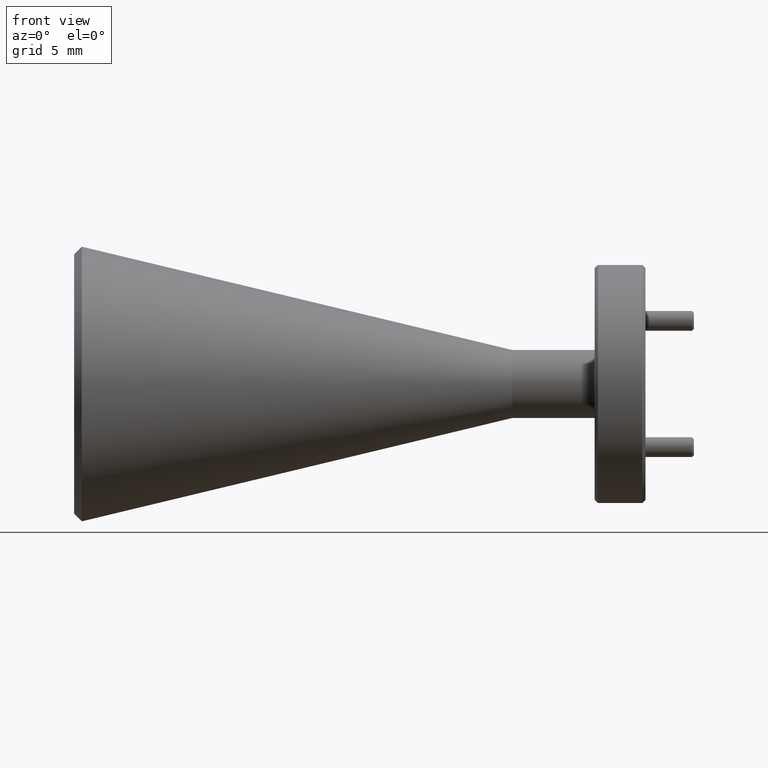
[diagram: clean part render]
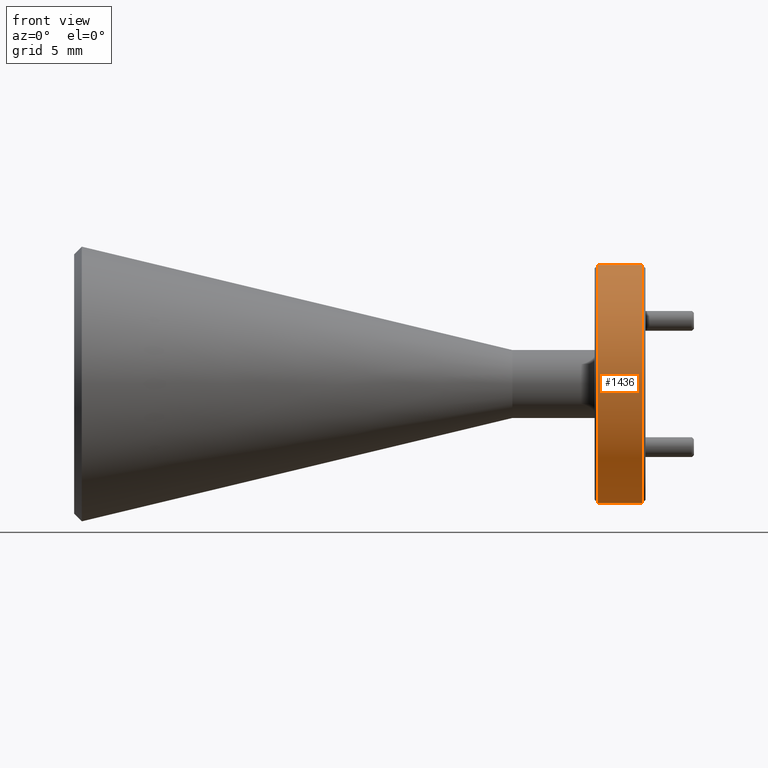
[diagram: same view with one face highlighted and labeled with its STEP entity id]
A machine part, front view. The second image highlights one B-rep face of the part: STEP entity #1436.
In plain terms, the highlighted cylindrical surface (partial cylindrical patch) has radius 9.525 mm, axis along (1, -0, -0).
Its self-contained STEP definition (entity closure, byte-faithful):
#32 = CARTESIAN_POINT ( 'NONE',  ( -5.168961933510677120, 1.217303930725912142, 1.995213308989429724 ) ) ;
#89 = EDGE_CURVE ( 'NONE', #1812, #2124, #768, .T. ) ;
#120 = CARTESIAN_POINT ( 'NONE',  ( -5.308961933510678577, 1.217303930725912142, 2.370213308989429724 ) ) ;
#265 = DIRECTION ( 'NONE',  ( 0.000000000000000000, 0.000000000000000000, -1.000000000000000000 ) ) ;
#314 = ORIENTED_EDGE ( 'NONE', *, *, #1720, .T. ) ;
#396 = EDGE_CURVE ( 'NONE', #498, #2239, #872, .T. ) ;
#424 = FACE_OUTER_BOUND ( 'NONE', #1226, .T. ) ;
#425 = AXIS2_PLACEMENT_3D ( 'NONE', #1530, #1160, #265 ) ;
#463 = ORIENTED_EDGE ( 'NONE', *, *, #89, .F. ) ;
#498 = VERTEX_POINT ( 'NONE', #931 ) ;
#545 = AXIS2_PLACEMENT_3D ( 'NONE', #120, #1572, #1426 ) ;
#572 = CARTESIAN_POINT ( 'NONE',  ( -5.168961933510677120, 1.217303930725912142, 2.370213308989429724 ) ) ;
#658 = ORIENTED_EDGE ( 'NONE', *, *, #1841, .T. ) ;
#692 = DIRECTION ( 'NONE',  ( 1.000000000000000000, -0.000000000000000000, -0.000000000000000000 ) ) ;
#759 = VECTOR ( 'NONE', #2185, 39.37007874015748143 ) ;
#768 = LINE ( 'NONE', #1652, #759 ) ;
#872 = LINE ( 'NONE', #2310, #1654 ) ;
#902 = DIRECTION ( 'NONE',  ( -1.000000000000000000, 0.000000000000000000, 0.000000000000000000 ) ) ;
#931 = CARTESIAN_POINT ( 'NONE',  ( -5.308961933510678577, 1.217303930725912142, 1.995213308989429724 ) ) ;
#1039 = CARTESIAN_POINT ( 'NONE',  ( -5.308961933510678577, 1.217303930725912142, 2.745213308989430168 ) ) ;
#1160 = DIRECTION ( 'NONE',  ( 1.000000000000000000, -0.000000000000000000, -0.000000000000000000 ) ) ;
#1226 = EDGE_LOOP ( 'NONE', ( #463, #658, #1417, #314 ) ) ;
#1417 = ORIENTED_EDGE ( 'NONE', *, *, #396, .T. ) ;
#1426 = DIRECTION ( 'NONE',  ( 0.000000000000000000, 0.000000000000000000, 1.000000000000000000 ) ) ;
#1436 = ADVANCED_FACE ( 'NONE', ( #424 ), #1893, .T. ) ;
#1530 = CARTESIAN_POINT ( 'NONE',  ( -5.158961933510678222, 1.217303930725912142, 2.370213308989429724 ) ) ;
#1568 = CIRCLE ( 'NONE', #2001, 0.3749999999999999445 ) ;
#1572 = DIRECTION ( 'NONE',  ( 1.000000000000000000, -0.000000000000000000, -0.000000000000000000 ) ) ;
#1652 = CARTESIAN_POINT ( 'NONE',  ( -5.158961933510678222, 1.217303930725912142, 2.745213308989430168 ) ) ;
#1654 = VECTOR ( 'NONE', #692, 39.37007874015748143 ) ;
#1720 = EDGE_CURVE ( 'NONE', #2239, #2124, #1568, .T. ) ;
#1721 = CIRCLE ( 'NONE', #545, 0.3750000000000002220 ) ;
#1766 = CARTESIAN_POINT ( 'NONE',  ( -5.168961933510677120, 1.217303930725912142, 2.745213308989430168 ) ) ;
#1812 = VERTEX_POINT ( 'NONE', #1039 ) ;
#1841 = EDGE_CURVE ( 'NONE', #1812, #498, #1721, .T. ) ;
#1893 = CYLINDRICAL_SURFACE ( 'NONE', #425, 0.3749999999999999445 ) ;
#2001 = AXIS2_PLACEMENT_3D ( 'NONE', #572, #902, #2163 ) ;
#2124 = VERTEX_POINT ( 'NONE', #1766 ) ;
#2163 = DIRECTION ( 'NONE',  ( 0.000000000000000000, 0.000000000000000000, -1.000000000000000000 ) ) ;
#2185 = DIRECTION ( 'NONE',  ( 1.000000000000000000, -0.000000000000000000, -0.000000000000000000 ) ) ;
#2239 = VERTEX_POINT ( 'NONE', #32 ) ;
#2310 = CARTESIAN_POINT ( 'NONE',  ( -5.158961933510678222, 1.217303930725912142, 1.995213308989429724 ) ) ;